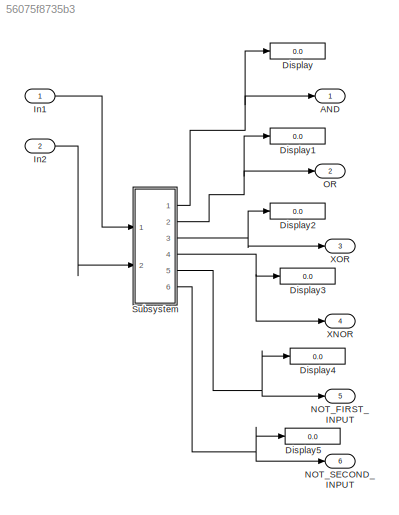
MODEL slx_56075f8735b3
KIND model
CONFIG AbsTol = auto
CONFIG EnableMultiTasking = off
CONFIG FixedStep = auto
CONFIG MaxStep = auto
CONFIG MinStep = auto
CONFIG RelTol = 1e-3
CONFIG SampleTimeConstraint = Unconstrained
CONFIG SolverName = FixedStepAuto
CONFIG StartTime = 0.0
CONFIG StopTime = 10.0
BLOCK [Outport] AND
  OutDataTypeStr = uint32
BLOCK [Display] Display
  Decimation = 1
  Ports = [1]
BLOCK [Display] Display1
  Decimation = 1
  Ports = [1]
BLOCK [Display] Display2
  Decimation = 1
  Ports = [1]
BLOCK [Display] Display3
  Decimation = 1
  Ports = [1]
BLOCK [Display] Display4
  Decimation = 1
  Ports = [1]
BLOCK [Display] Display5
  Decimation = 1
  Ports = [1]
BLOCK [Inport] In1
  OutDataTypeStr = uint32
BLOCK [Inport] In2
  OutDataTypeStr = uint32
  Port = 2
BLOCK [Outport] NOT_FIRST_INPUT
  OutDataTypeStr = uint32
  Port = 5
BLOCK [Outport] NOT_SECOND_INPUT
  OutDataTypeStr = uint32
  Port = 6
BLOCK [Outport] OR
  OutDataTypeStr = uint32
  Port = 2
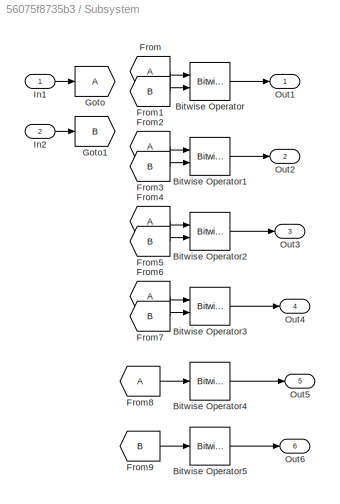
BLOCK [SubSystem] Subsystem
  Ports = [2, 6]
  RequestExecContextInheritance = off
BLOCK [Reference] Subsystem/Bitwise Operator  REF=simulink/Logic and Bit
Operations/Bitwise
Operator
  Ports = [2, 1]
  SourceBlock = simulink/Logic and Bit\nOperations/Bitwise\nOperator
  SourceProductBaseCode = SL
  SourceType = Bitwise Operator
BLOCK [Reference] Subsystem/Bitwise Operator1  REF=simulink/Logic and Bit
Operations/Bitwise
Operator
  Ports = [2, 1]
  SourceBlock = simulink/Logic and Bit\nOperations/Bitwise\nOperator
  SourceProductBaseCode = SL
  SourceType = Bitwise Operator
BLOCK [Reference] Subsystem/Bitwise Operator2  REF=simulink/Logic and Bit
Operations/Bitwise
Operator
  Ports = [2, 1]
  SourceBlock = simulink/Logic and Bit\nOperations/Bitwise\nOperator
  SourceProductBaseCode = SL
  SourceType = Bitwise Operator
BLOCK [Reference] Subsystem/Bitwise Operator3  REF=simulink/Logic and Bit
Operations/Bitwise
Operator
  Ports = [2, 1]
  SourceBlock = simulink/Logic and Bit\nOperations/Bitwise\nOperator
  SourceProductBaseCode = SL
  SourceType = Bitwise Operator
BLOCK [Reference] Subsystem/Bitwise Operator4  REF=simulink/Logic and Bit
Operations/Bitwise
Operator
  Ports = [1, 1]
  SourceBlock = simulink/Logic and Bit\nOperations/Bitwise\nOperator
  SourceProductBaseCode = SL
  SourceType = Bitwise Operator
BLOCK [Reference] Subsystem/Bitwise Operator5  REF=simulink/Logic and Bit
Operations/Bitwise
Operator
  Ports = [1, 1]
  SourceBlock = simulink/Logic and Bit\nOperations/Bitwise\nOperator
  SourceProductBaseCode = SL
  SourceType = Bitwise Operator
BLOCK [From] Subsystem/From
BLOCK [From] Subsystem/From1
  GotoTag = B
BLOCK [From] Subsystem/From2
BLOCK [From] Subsystem/From3
  GotoTag = B
BLOCK [From] Subsystem/From4
BLOCK [From] Subsystem/From5
  GotoTag = B
BLOCK [From] Subsystem/From6
BLOCK [From] Subsystem/From7
  GotoTag = B
BLOCK [From] Subsystem/From8
BLOCK [From] Subsystem/From9
  GotoTag = B
BLOCK [Goto] Subsystem/Goto
BLOCK [Goto] Subsystem/Goto1
  GotoTag = B
BLOCK [Inport] Subsystem/In1
BLOCK [Inport] Subsystem/In2
  Port = 2
BLOCK [Outport] Subsystem/Out1
BLOCK [Outport] Subsystem/Out2
  Port = 2
BLOCK [Outport] Subsystem/Out3
  Port = 3
BLOCK [Outport] Subsystem/Out4
  Port = 4
BLOCK [Outport] Subsystem/Out5
  Port = 5
BLOCK [Outport] Subsystem/Out6
  Port = 6
BLOCK [Outport] XNOR
  OutDataTypeStr = uint32
  Port = 4
BLOCK [Outport] XOR
  OutDataTypeStr = uint32
  Port = 3
LINE In1:1 -> Subsystem:1
LINE In2:1 -> Subsystem:2
LINE Subsystem/Bitwise Operator1:1 -> Subsystem/Out2:1
LINE Subsystem/Bitwise Operator2:1 -> Subsystem/Out3:1
LINE Subsystem/Bitwise Operator3:1 -> Subsystem/Out4:1
LINE Subsystem/Bitwise Operator4:1 -> Subsystem/Out5:1
LINE Subsystem/Bitwise Operator5:1 -> Subsystem/Out6:1
LINE Subsystem/Bitwise Operator:1 -> Subsystem/Out1:1
LINE Subsystem/From1:1 -> Subsystem/Bitwise Operator:2
LINE Subsystem/From2:1 -> Subsystem/Bitwise Operator1:1
LINE Subsystem/From3:1 -> Subsystem/Bitwise Operator1:2
LINE Subsystem/From4:1 -> Subsystem/Bitwise Operator2:1
LINE Subsystem/From5:1 -> Subsystem/Bitwise Operator2:2
LINE Subsystem/From6:1 -> Subsystem/Bitwise Operator3:1
LINE Subsystem/From7:1 -> Subsystem/Bitwise Operator3:2
LINE Subsystem/From8:1 -> Subsystem/Bitwise Operator4:1
LINE Subsystem/From9:1 -> Subsystem/Bitwise Operator5:1
LINE Subsystem/From:1 -> Subsystem/Bitwise Operator:1
LINE Subsystem/In1:1 -> Subsystem/Goto:1
LINE Subsystem/In2:1 -> Subsystem/Goto1:1
NET Subsystem:1 -> AND:1, Display:1
NET Subsystem:2 -> Display1:1, OR:1
NET Subsystem:3 -> Display2:1, XOR:1
NET Subsystem:4 -> Display3:1, XNOR:1
NET Subsystem:5 -> Display4:1, NOT_FIRST_INPUT:1
NET Subsystem:6 -> Display5:1, NOT_SECOND_INPUT:1
note: NET lines group one-source signal fan-out (src -> all destinations, sorted); 1:1 wires keep LINE
